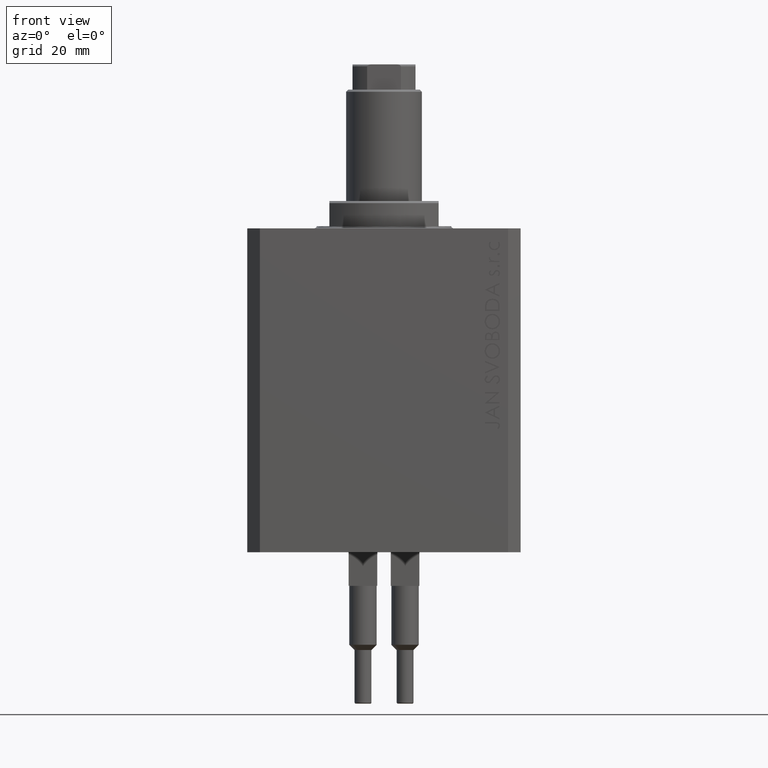
[diagram: clean part render]
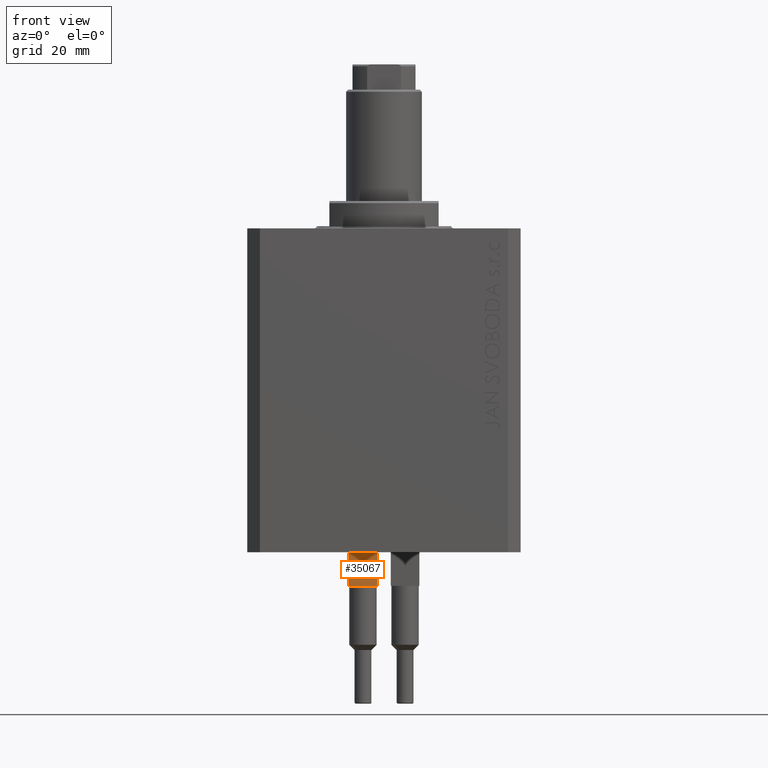
[diagram: same view with one face highlighted and labeled with its STEP entity id]
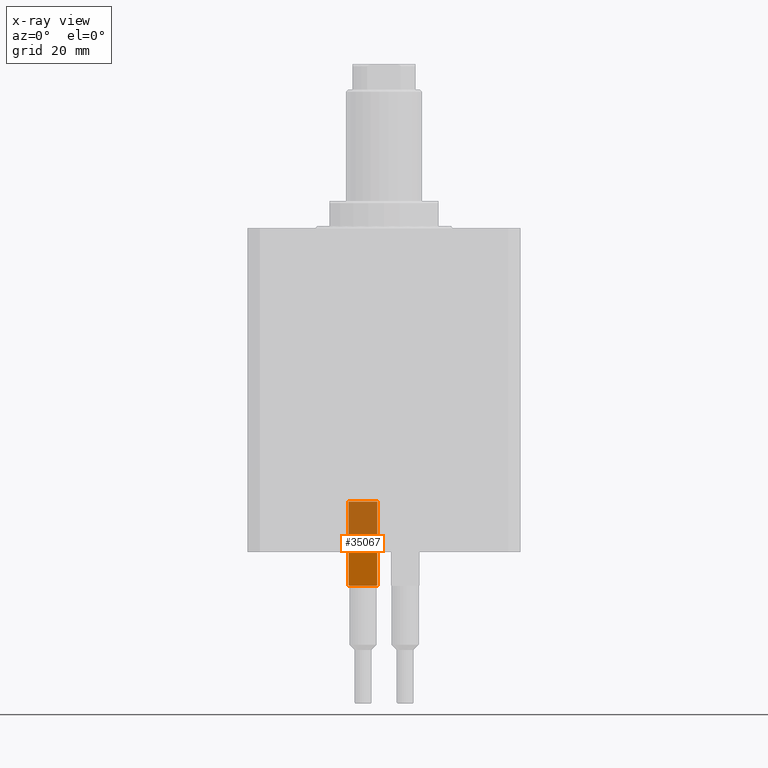
[diagram: x-ray of the same camera — body ghosted, the highlighted face saturated]
A machine part, front view. The second image highlights one B-rep face of the part: STEP entity #35067.
The next image is the same camera in x-ray: the body ghosted, the highlighted face saturated — about 60% of this face is hidden behind the body in this view.
In plain terms, the highlighted planar face has unit normal (-0, 1, 0).
Its self-contained STEP definition (entity closure, byte-faithful):
#227 = LINE ( 'NONE', #33642, #21568 ) ;
#1380 = VERTEX_POINT ( 'NONE', #40211 ) ;
#2760 = CARTESIAN_POINT ( 'NONE',  ( -3.399999999999999911, 1.500000000000000000, 20.00000000000000000 ) ) ;
#3239 = LINE ( 'NONE', #2760, #21729 ) ;
#3778 = VECTOR ( 'NONE', #33894, 1000.000000000000000 ) ;
#5068 = VECTOR ( 'NONE', #45036, 1000.000000000000000 ) ;
#5538 = EDGE_CURVE ( 'NONE', #24026, #24122, #9341, .T. ) ;
#6295 = CARTESIAN_POINT ( 'NONE',  ( 3.400000000000000355, 1.500000000000000000, 40.00000000000000000 ) ) ;
#6552 = VERTEX_POINT ( 'NONE', #42565 ) ;
#9341 = LINE ( 'NONE', #34530, #33782 ) ;
#11415 = ORIENTED_EDGE ( 'NONE', *, *, #33159, .T. ) ;
#11497 = CARTESIAN_POINT ( 'NONE',  ( -3.399999999999999911, 1.500000000000000000, 20.00000000000000000 ) ) ;
#13663 = DIRECTION ( 'NONE',  ( -1.000000000000000000, -0.000000000000000000, -0.000000000000000000 ) ) ;
#14202 = DIRECTION ( 'NONE',  ( -1.000000000000000000, -0.000000000000000000, -0.000000000000000000 ) ) ;
#15117 = VECTOR ( 'NONE', #36059, 1000.000000000000000 ) ;
#15140 = VERTEX_POINT ( 'NONE', #47172 ) ;
#15215 = CARTESIAN_POINT ( 'NONE',  ( 3.400000000000000355, 1.500000000000000000, 40.00000000000000000 ) ) ;
#15371 = EDGE_CURVE ( 'NONE', #29020, #45641, #44727, .T. ) ;
#15659 = VECTOR ( 'NONE', #26280, 1000.000000000000000 ) ;
#15742 = DIRECTION ( 'NONE',  ( 0.000000000000000000, -0.000000000000000000, -1.000000000000000000 ) ) ;
#16371 = DIRECTION ( 'NONE',  ( -0.000000000000000000, -0.000000000000000000, -1.000000000000000000 ) ) ;
#17860 = ORIENTED_EDGE ( 'NONE', *, *, #45853, .F. ) ;
#18188 = CARTESIAN_POINT ( 'NONE',  ( -3.399999999999999911, 1.500000000000000000, 40.00000000000000000 ) ) ;
#18618 = ORIENTED_EDGE ( 'NONE', *, *, #41032, .F. ) ;
#20628 = AXIS2_PLACEMENT_3D ( 'NONE', #37800, #41929, #15742 ) ;
#21162 = ORIENTED_EDGE ( 'NONE', *, *, #15371, .T. ) ;
#21568 = VECTOR ( 'NONE', #22285, 1000.000000000000000 ) ;
#21729 = VECTOR ( 'NONE', #13663, 1000.000000000000000 ) ;
#22285 = DIRECTION ( 'NONE',  ( -1.000000000000000000, -0.000000000000000000, -0.000000000000000000 ) ) ;
#24026 = VERTEX_POINT ( 'NONE', #43890 ) ;
#24122 = VERTEX_POINT ( 'NONE', #41426 ) ;
#26280 = DIRECTION ( 'NONE',  ( -1.000000000000000000, -0.000000000000000000, -0.000000000000000000 ) ) ;
#27128 = PLANE ( 'NONE',  #20628 ) ;
#28221 = VERTEX_POINT ( 'NONE', #6295 ) ;
#28269 = LINE ( 'NONE', #36271, #44191 ) ;
#28483 = EDGE_CURVE ( 'NONE', #28221, #29020, #30458, .T. ) ;
#29020 = VERTEX_POINT ( 'NONE', #45159 ) ;
#30458 = LINE ( 'NONE', #15215, #5068 ) ;
#30859 = ORIENTED_EDGE ( 'NONE', *, *, #40130, .F. ) ;
#32185 = ORIENTED_EDGE ( 'NONE', *, *, #5538, .F. ) ;
#33159 = EDGE_CURVE ( 'NONE', #6552, #24122, #36540, .T. ) ;
#33642 = CARTESIAN_POINT ( 'NONE',  ( -3.399999999999999911, 1.500000000000000000, 40.00000000000000000 ) ) ;
#33782 = VECTOR ( 'NONE', #16371, 1000.000000000000000 ) ;
#33894 = DIRECTION ( 'NONE',  ( -1.000000000000000000, -0.000000000000000000, -0.000000000000000000 ) ) ;
#34136 = FACE_OUTER_BOUND ( 'NONE', #36091, .T. ) ;
#34530 = CARTESIAN_POINT ( 'NONE',  ( -3.399999999999999911, 1.500000000000000000, 40.00000000000000000 ) ) ;
#34802 = ORIENTED_EDGE ( 'NONE', *, *, #45199, .T. ) ;
#35067 = ADVANCED_FACE ( 'NONE', ( #34136 ), #27128, .F. ) ;
#36059 = DIRECTION ( 'NONE',  ( -1.000000000000000000, -0.000000000000000000, -0.000000000000000000 ) ) ;
#36091 = EDGE_LOOP ( 'NONE', ( #21162, #34802, #11415, #32185, #30859, #18618, #17860, #37467 ) ) ;
#36271 = CARTESIAN_POINT ( 'NONE',  ( -3.399999999999999911, 1.500000000000000000, 40.00000000000000000 ) ) ;
#36540 = LINE ( 'NONE', #39700, #15117 ) ;
#36606 = LINE ( 'NONE', #18188, #3778 ) ;
#37467 = ORIENTED_EDGE ( 'NONE', *, *, #28483, .T. ) ;
#37800 = CARTESIAN_POINT ( 'NONE',  ( -3.399999999999999911, 1.500000000000000000, 40.00000000000000000 ) ) ;
#39700 = CARTESIAN_POINT ( 'NONE',  ( -3.399999999999999911, 1.500000000000000000, 20.00000000000000000 ) ) ;
#40130 = EDGE_CURVE ( 'NONE', #1380, #24026, #227, .T. ) ;
#40211 = CARTESIAN_POINT ( 'NONE',  ( -2.883140648667699146, 1.500000000000000000, 40.00000000000000000 ) ) ;
#41032 = EDGE_CURVE ( 'NONE', #15140, #1380, #36606, .T. ) ;
#41426 = CARTESIAN_POINT ( 'NONE',  ( -3.399999999999999911, 1.500000000000000000, 20.00000000000000000 ) ) ;
#41929 = DIRECTION ( 'NONE',  ( 0.000000000000000000, -1.000000000000000000, 0.000000000000000000 ) ) ;
#42565 = CARTESIAN_POINT ( 'NONE',  ( -3.051229260478471428, 1.500000000000000000, 20.00000000000000000 ) ) ;
#43890 = CARTESIAN_POINT ( 'NONE',  ( -3.399999999999999911, 1.500000000000000000, 40.00000000000000000 ) ) ;
#44191 = VECTOR ( 'NONE', #14202, 1000.000000000000000 ) ;
#44727 = LINE ( 'NONE', #11497, #15659 ) ;
#45036 = DIRECTION ( 'NONE',  ( -0.000000000000000000, -0.000000000000000000, -1.000000000000000000 ) ) ;
#45159 = CARTESIAN_POINT ( 'NONE',  ( 3.400000000000000355, 1.500000000000000000, 20.00000000000000000 ) ) ;
#45199 = EDGE_CURVE ( 'NONE', #45641, #6552, #3239, .T. ) ;
#45641 = VERTEX_POINT ( 'NONE', #46536 ) ;
#45853 = EDGE_CURVE ( 'NONE', #28221, #15140, #28269, .T. ) ;
#46536 = CARTESIAN_POINT ( 'NONE',  ( 3.051229260478471428, 1.500000000000000000, 20.00000000000000000 ) ) ;
#47172 = CARTESIAN_POINT ( 'NONE',  ( 2.883140648667699146, 1.500000000000000000, 40.00000000000000000 ) ) ;